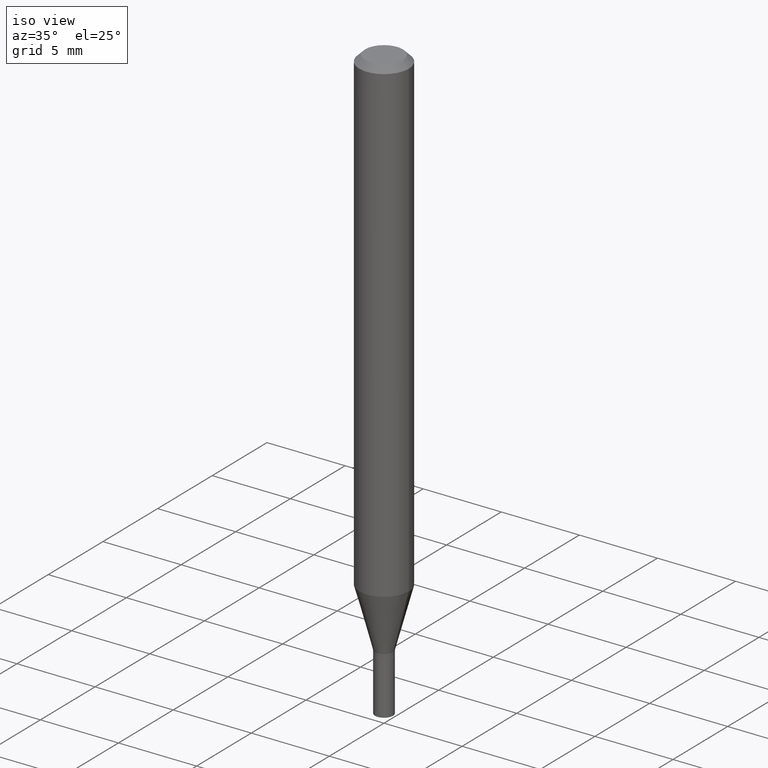
[diagram: clean part render]
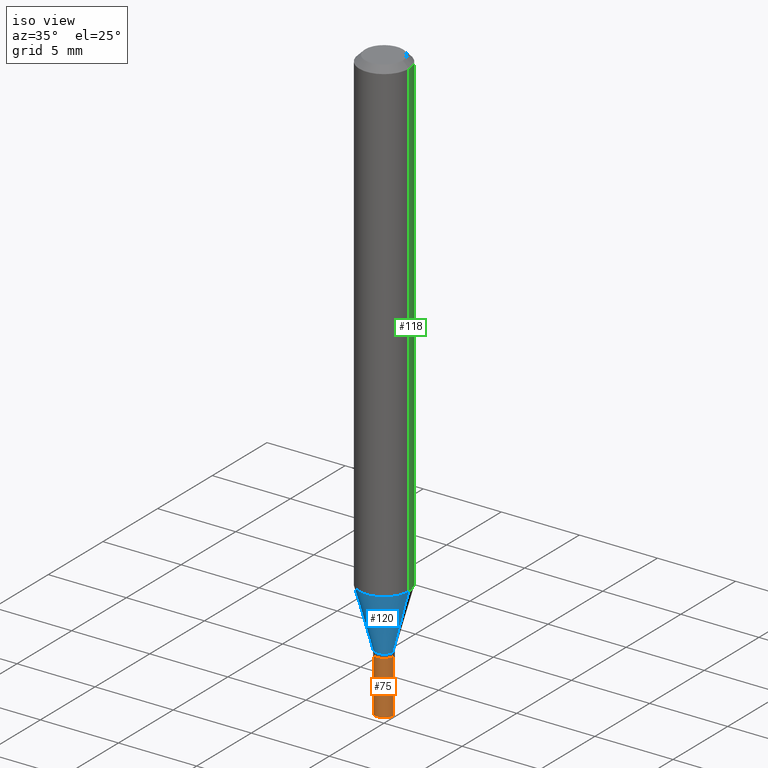
[diagram: same view with three faces highlighted in distinct colors, each labeled with its STEP entity id]
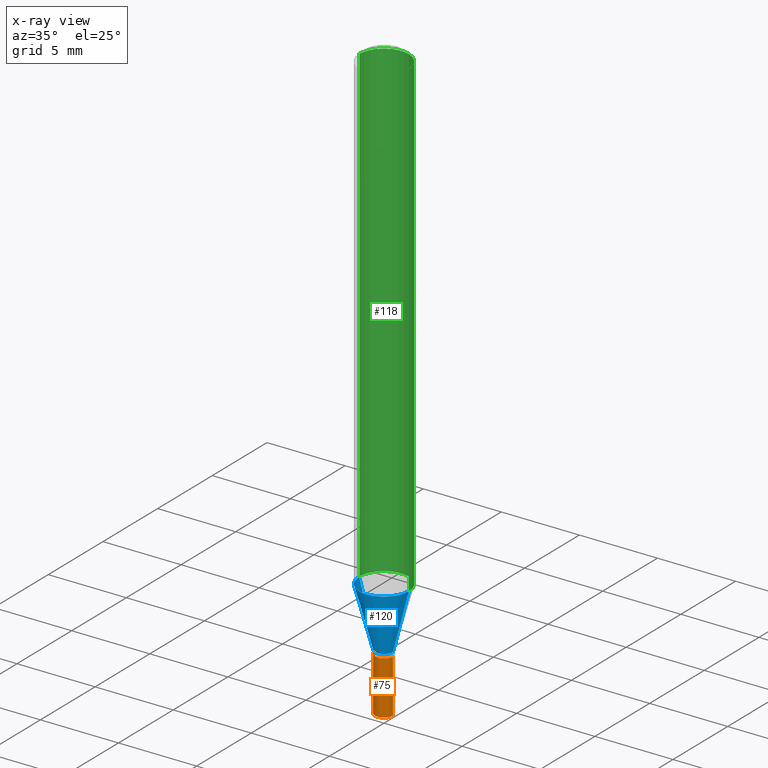
[diagram: x-ray of the same camera — body ghosted, the three highlighted faces saturated]
A machine part, iso view with three faces highlighted in distinct colors.
The next image is the same camera in x-ray (body ghosted, the three faces saturated) — at least one of them is partly hidden behind the body in this view.
Their STEP definitions:

[orange] entity #75 — the highlighted cylindrical surface (edge-blend (fillet) strip) has radius 0.5715 mm, axis along (-0, 0, 1).
#5 = EDGE_LOOP ( 'NONE', ( #10, #349, #232, #228 ) ) ;
#10 = ORIENTED_EDGE ( 'NONE', *, *, #390, .F. ) ;
#21 = DIRECTION ( 'NONE',  ( 1.000000000000000000, -6.982962677686269077E-15, 0.000000000000000000 ) ) ;
#44 = CARTESIAN_POINT ( 'NONE',  ( -0.02249999999999999917, -4.841674902346784228E-15, -1.500000000000000222 ) ) ;
#58 = AXIS2_PLACEMENT_3D ( 'NONE', #369, #224, #309 ) ;
#62 = EDGE_CURVE ( 'NONE', #323, #203, #248, .T. ) ;
#75 = ADVANCED_FACE ( 'NONE', ( #457 ), #313, .T. ) ;
#86 = CARTESIAN_POINT ( 'NONE',  ( -0.02249999999999999917, 1.598721155460225359E-16, -1.106760395307353780E-30 ) ) ;
#93 = VERTEX_POINT ( 'NONE', #384 ) ;
#95 = CARTESIAN_POINT ( 'NONE',  ( 3.668203209277704895E-29, -5.237222008264718177E-15, -1.500000000000000222 ) ) ;
#132 = CARTESIAN_POINT ( 'NONE',  ( 0.000000000000000000, 0.000000000000000000, 0.000000000000000000 ) ) ;
#142 = CARTESIAN_POINT ( 'NONE',  ( 0.02249999999999999917, -1.571166602479409911E-16, 1.097139774554085483E-30 ) ) ;
#158 = EDGE_CURVE ( 'NONE', #203, #226, #434, .T. ) ;
#172 = DIRECTION ( 'NONE',  ( -2.445468806185136877E-29, 3.491481338843145188E-15, 1.000000000000000000 ) ) ;
#195 = DIRECTION ( 'NONE',  ( -2.445468806185136877E-29, 3.491481338843145188E-15, 1.000000000000000000 ) ) ;
#203 = VERTEX_POINT ( 'NONE', #351 ) ;
#224 = DIRECTION ( 'NONE',  ( -2.445468806185136597E-29, 3.491481338843145583E-15, 1.000000000000000000 ) ) ;
#226 = VERTEX_POINT ( 'NONE', #356 ) ;
#228 = ORIENTED_EDGE ( 'NONE', *, *, #267, .F. ) ;
#232 = ORIENTED_EDGE ( 'NONE', *, *, #158, .T. ) ;
#242 = AXIS2_PLACEMENT_3D ( 'NONE', #132, #376, #280 ) ;
#248 = CIRCLE ( 'NONE', #362, 0.02249999999999999917 ) ;
#267 = EDGE_CURVE ( 'NONE', #93, #226, #301, .T. ) ;
#280 = DIRECTION ( 'NONE',  ( 1.000000000000000000, -6.982962677686266711E-15, 4.876176775795935793E-29 ) ) ;
#291 = VECTOR ( 'NONE', #195, 39.37007874015748143 ) ;
#297 = LINE ( 'NONE', #86, #291 ) ;
#301 = CIRCLE ( 'NONE', #58, 0.02249999999999999917 ) ;
#309 = DIRECTION ( 'NONE',  ( 1.000000000000000000, -6.982962677686269077E-15, 0.000000000000000000 ) ) ;
#313 = CYLINDRICAL_SURFACE ( 'NONE', #242, 0.02249999999999999917 ) ;
#317 = VECTOR ( 'NONE', #172, 39.37007874015748143 ) ;
#323 = VERTEX_POINT ( 'NONE', #44 ) ;
#338 = DIRECTION ( 'NONE',  ( -2.445468806185136597E-29, 3.491481338843145583E-15, 1.000000000000000000 ) ) ;
#349 = ORIENTED_EDGE ( 'NONE', *, *, #62, .T. ) ;
#351 = CARTESIAN_POINT ( 'NONE',  ( 0.02249999999999999917, -5.394338668512659809E-15, -1.500000000000000222 ) ) ;
#356 = CARTESIAN_POINT ( 'NONE',  ( 0.02249999999999999917, -4.922988687768834913E-15, -1.364999999999999991 ) ) ;
#362 = AXIS2_PLACEMENT_3D ( 'NONE', #95, #338, #21 ) ;
#369 = CARTESIAN_POINT ( 'NONE',  ( 3.338064920442711836E-29, -4.765872027520893280E-15, -1.364999999999999991 ) ) ;
#376 = DIRECTION ( 'NONE',  ( -2.445468806185136597E-29, 3.491481338843145583E-15, 1.000000000000000000 ) ) ;
#384 = CARTESIAN_POINT ( 'NONE',  ( -0.02249999999999999917, -4.841674902346784228E-15, -1.364999999999999991 ) ) ;
#390 = EDGE_CURVE ( 'NONE', #323, #93, #297, .T. ) ;
#434 = LINE ( 'NONE', #142, #317 ) ;
#457 = FACE_OUTER_BOUND ( 'NONE', #5, .T. ) ;

[blue] entity #120 — the highlighted conical surface has half-angle 15 deg.
#7 = DIRECTION ( 'NONE',  ( -2.445468806185136597E-29, 3.491481338843145583E-15, 1.000000000000000000 ) ) ;
#37 = EDGE_CURVE ( 'NONE', #74, #257, #450, .T. ) ;
#48 = LINE ( 'NONE', #443, #138 ) ;
#49 = EDGE_LOOP ( 'NONE', ( #398, #115, #420, #444 ) ) ;
#74 = VERTEX_POINT ( 'NONE', #236 ) ;
#99 = VECTOR ( 'NONE', #127, 39.37007874015747433 ) ;
#111 = DIRECTION ( 'NONE',  ( -2.445468806185136597E-29, 3.491481338843145583E-15, 1.000000000000000000 ) ) ;
#115 = ORIENTED_EDGE ( 'NONE', *, *, #37, .T. ) ;
#120 = ADVANCED_FACE ( 'NONE', ( #221 ), #419, .T. ) ;
#125 = CARTESIAN_POINT ( 'NONE',  ( 0.02249999999999991937, -4.888073874380403263E-15, -1.355000000000000204 ) ) ;
#127 = DIRECTION ( 'NONE',  ( 0.2588190451025213501, 1.565188264969621968E-15, 0.9659258262890682012 ) ) ;
#138 = VECTOR ( 'NONE', #152, 39.37007874015747433 ) ;
#145 = CARTESIAN_POINT ( 'NONE',  ( 3.313610232380860851E-29, -4.730957214132463209E-15, -1.355000000000000204 ) ) ;
#150 = EDGE_CURVE ( 'NONE', #259, #370, #459, .T. ) ;
#152 = DIRECTION ( 'NONE',  ( -0.2588190451025213501, 5.211531920934551042E-15, 0.9659258262890682012 ) ) ;
#171 = CARTESIAN_POINT ( 'NONE',  ( 3.313610232380860851E-29, -4.730957214132463209E-15, -1.355000000000000204 ) ) ;
#200 = CARTESIAN_POINT ( 'NONE',  ( -0.06250000000000001388, -3.765652574272750998E-15, -1.205717967697245152 ) ) ;
#206 = DIRECTION ( 'NONE',  ( -2.445468806185136597E-29, 3.491481338843145583E-15, 1.000000000000000000 ) ) ;
#221 = FACE_OUTER_BOUND ( 'NONE', #49, .T. ) ;
#236 = CARTESIAN_POINT ( 'NONE',  ( -0.02249999999999991937, -4.168368836429595565E-15, -1.355000000000000204 ) ) ;
#254 = AXIS2_PLACEMENT_3D ( 'NONE', #466, #111, #258 ) ;
#257 = VERTEX_POINT ( 'NONE', #341 ) ;
#258 = DIRECTION ( 'NONE',  ( 1.000000000000000000, -6.982962677686270655E-15, 0.000000000000000000 ) ) ;
#259 = VERTEX_POINT ( 'NONE', #200 ) ;
#300 = EDGE_CURVE ( 'NONE', #257, #370, #408, .T. ) ;
#329 = CARTESIAN_POINT ( 'NONE',  ( 0.06250000000000001388, -4.646176951478205284E-15, -1.205717967697245152 ) ) ;
#340 = DIRECTION ( 'NONE',  ( 1.000000000000000000, -6.982962677686249356E-15, 0.000000000000000000 ) ) ;
#341 = CARTESIAN_POINT ( 'NONE',  ( 0.02249999999999991937, -4.888073874380403263E-15, -1.355000000000000204 ) ) ;
#345 = AXIS2_PLACEMENT_3D ( 'NONE', #145, #7, #353 ) ;
#353 = DIRECTION ( 'NONE',  ( 1.000000000000000000, -6.982962677686249356E-15, 0.000000000000000000 ) ) ;
#370 = VERTEX_POINT ( 'NONE', #329 ) ;
#382 = EDGE_CURVE ( 'NONE', #74, #259, #48, .T. ) ;
#398 = ORIENTED_EDGE ( 'NONE', *, *, #382, .F. ) ;
#408 = LINE ( 'NONE', #125, #99 ) ;
#409 = AXIS2_PLACEMENT_3D ( 'NONE', #171, #206, #340 ) ;
#419 = CONICAL_SURFACE ( 'NONE', #345, 0.02249999999999991937, 0.2617993877991500740 ) ;
#420 = ORIENTED_EDGE ( 'NONE', *, *, #300, .T. ) ;
#443 = CARTESIAN_POINT ( 'NONE',  ( -0.02249999999999991937, -4.571085098586440920E-15, -1.355000000000000204 ) ) ;
#444 = ORIENTED_EDGE ( 'NONE', *, *, #150, .F. ) ;
#450 = CIRCLE ( 'NONE', #409, 0.02249999999999991937 ) ;
#459 = CIRCLE ( 'NONE', #254, 0.06250000000000000000 ) ;
#466 = CARTESIAN_POINT ( 'NONE',  ( 2.948545679060551070E-29, -4.209741784122813615E-15, -1.205717967697245152 ) ) ;

[green] entity #118 — the highlighted cylindrical surface (edge-blend (fillet) strip) has radius 1.5875 mm, axis along (-0, 0, 1).
#19 = EDGE_LOOP ( 'NONE', ( #40, #239, #194, #262 ) ) ;
#20 = DIRECTION ( 'NONE',  ( 1.000000000000000000, -6.982962677686266711E-15, 0.000000000000000000 ) ) ;
#30 = EDGE_CURVE ( 'NONE', #370, #259, #122, .T. ) ;
#40 = ORIENTED_EDGE ( 'NONE', *, *, #30, .T. ) ;
#52 = DIRECTION ( 'NONE',  ( -2.445468806185136597E-29, 3.491481338843145583E-15, 1.000000000000000000 ) ) ;
#71 = VECTOR ( 'NONE', #445, 39.37007874015748143 ) ;
#80 = AXIS2_PLACEMENT_3D ( 'NONE', #288, #321, #143 ) ;
#90 = CARTESIAN_POINT ( 'NONE',  ( 2.948545679060551070E-29, -4.209741784122813615E-15, -1.205717967697245152 ) ) ;
#96 = LINE ( 'NONE', #212, #146 ) ;
#116 = FACE_OUTER_BOUND ( 'NONE', #19, .T. ) ;
#118 = ADVANCED_FACE ( 'NONE', ( #116 ), #184, .T. ) ;
#122 = CIRCLE ( 'NONE', #186, 0.06250000000000000000 ) ;
#143 = DIRECTION ( 'NONE',  ( 1.000000000000000000, -6.982962677686266711E-15, 4.876176775795935793E-29 ) ) ;
#146 = VECTOR ( 'NONE', #312, 39.37007874015748143 ) ;
#184 = CYLINDRICAL_SURFACE ( 'NONE', #80, 0.06250000000000000000 ) ;
#186 = AXIS2_PLACEMENT_3D ( 'NONE', #90, #52, #279 ) ;
#191 = VERTEX_POINT ( 'NONE', #211 ) ;
#194 = ORIENTED_EDGE ( 'NONE', *, *, #293, .F. ) ;
#200 = CARTESIAN_POINT ( 'NONE',  ( -0.06250000000000001388, -3.765652574272750998E-15, -1.205717967697245152 ) ) ;
#205 = CIRCLE ( 'NONE', #213, 0.06250000000000000000 ) ;
#211 = CARTESIAN_POINT ( 'NONE',  ( -0.06250000000000000000, -1.686967792252667731E-15, -0.01499999999999999944 ) ) ;
#212 = CARTESIAN_POINT ( 'NONE',  ( -0.06250000000000000000, 4.440892098500626162E-16, -3.074334431409316114E-30 ) ) ;
#213 = AXIS2_PLACEMENT_3D ( 'NONE', #449, #307, #20 ) ;
#227 = LINE ( 'NONE', #404, #71 ) ;
#239 = ORIENTED_EDGE ( 'NONE', *, *, #453, .T. ) ;
#259 = VERTEX_POINT ( 'NONE', #200 ) ;
#262 = ORIENTED_EDGE ( 'NONE', *, *, #298, .F. ) ;
#279 = DIRECTION ( 'NONE',  ( 1.000000000000000000, -6.982962677686270655E-15, 0.000000000000000000 ) ) ;
#288 = CARTESIAN_POINT ( 'NONE',  ( 0.000000000000000000, 0.000000000000000000, 0.000000000000000000 ) ) ;
#293 = EDGE_CURVE ( 'NONE', #448, #191, #205, .T. ) ;
#298 = EDGE_CURVE ( 'NONE', #370, #448, #227, .T. ) ;
#307 = DIRECTION ( 'NONE',  ( -2.445468806185136597E-29, 3.491481338843145583E-15, 1.000000000000000000 ) ) ;
#312 = DIRECTION ( 'NONE',  ( -2.445468806185136877E-29, 3.491481338843145188E-15, 1.000000000000000000 ) ) ;
#321 = DIRECTION ( 'NONE',  ( -2.445468806185136597E-29, 3.491481338843145583E-15, 1.000000000000000000 ) ) ;
#329 = CARTESIAN_POINT ( 'NONE',  ( 0.06250000000000001388, -4.646176951478205284E-15, -1.205717967697245152 ) ) ;
#370 = VERTEX_POINT ( 'NONE', #329 ) ;
#404 = CARTESIAN_POINT ( 'NONE',  ( 0.06250000000000000000, -4.364351673553916694E-16, 3.047610484872459871E-30 ) ) ;
#445 = DIRECTION ( 'NONE',  ( -2.445468806185136877E-29, 3.491481338843145188E-15, 1.000000000000000000 ) ) ;
#448 = VERTEX_POINT ( 'NONE', #463 ) ;
#449 = CARTESIAN_POINT ( 'NONE',  ( 3.668203209277705088E-31, -5.237222008264718399E-17, -0.01499999999999999944 ) ) ;
#453 = EDGE_CURVE ( 'NONE', #259, #191, #96, .T. ) ;
#463 = CARTESIAN_POINT ( 'NONE',  ( 0.06250000000000000000, -4.888073874380388472E-16, -0.01499999999999999944 ) ) ;